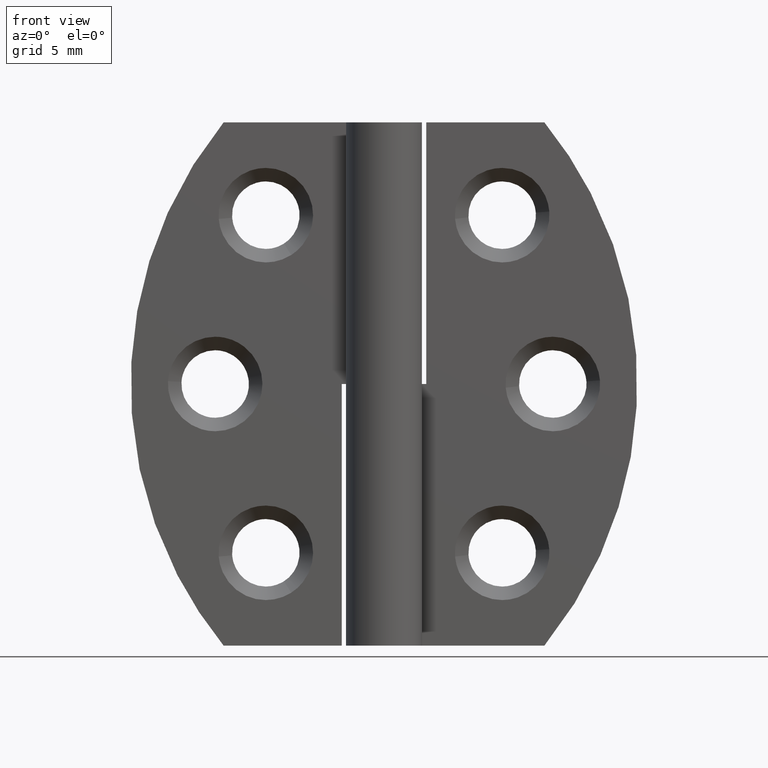
[diagram: clean part render]
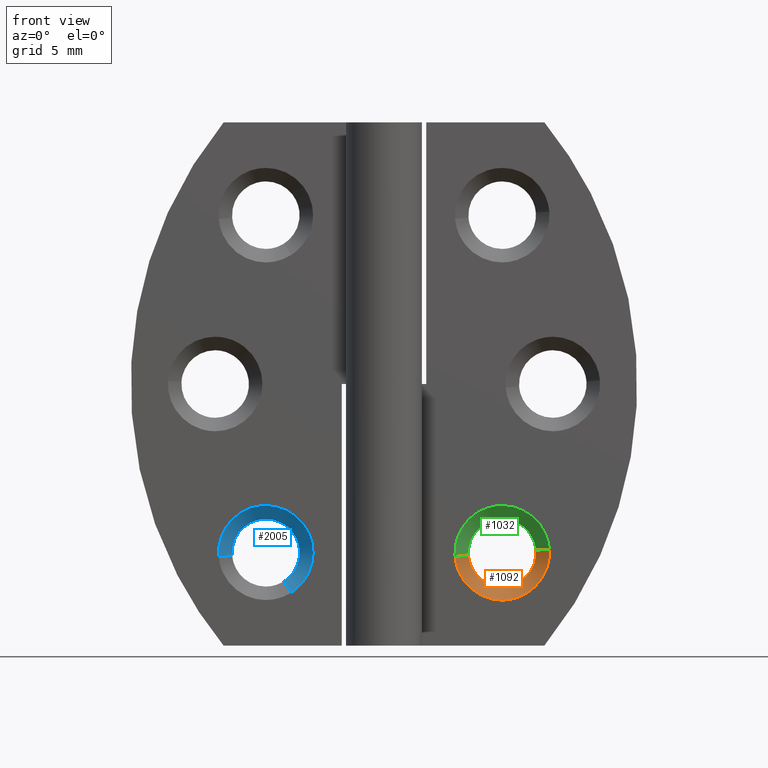
[diagram: same view with three faces highlighted in distinct colors, each labeled with its STEP entity id]
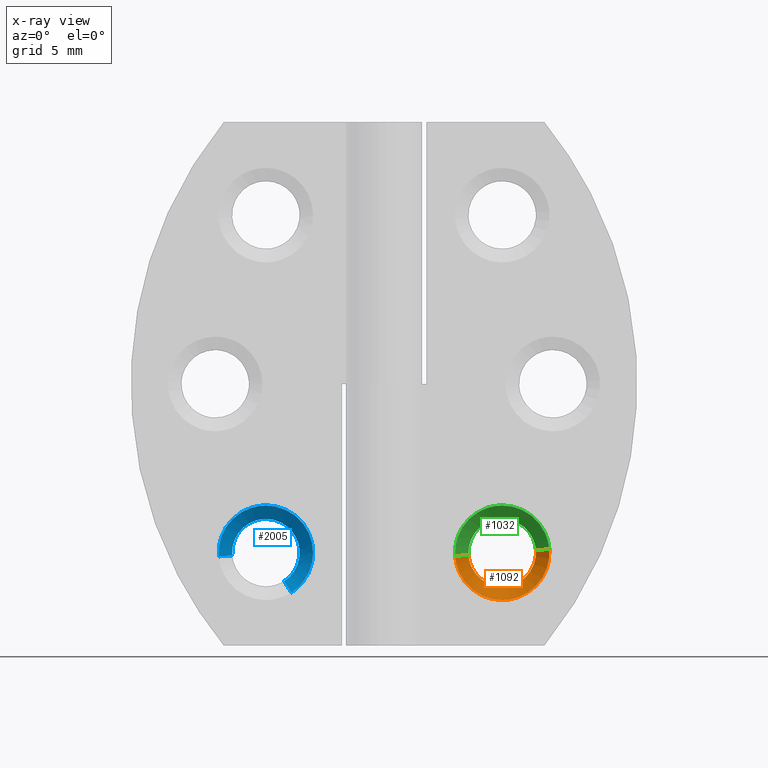
[diagram: x-ray of the same camera — body ghosted, the three highlighted faces saturated]
A machine part, front view with three faces highlighted in distinct colors.
The next image is the same camera in x-ray (body ghosted, the three faces saturated) — at least one of them is partly hidden behind the body in this view.
Their STEP definitions:

[orange] entity #1092 — the highlighted face is a freeform B-spline surface patch.
#783=CARTESIAN_POINT('',(8.986938514657123,2.050000000000000,5.271799783148132));
#784=VERTEX_POINT('',#783);
#785=CARTESIAN_POINT('',(7.000000000000100,2.050000000000000,3.500000000000100));
#786=VERTEX_POINT('',#785);
#787=CARTESIAN_POINT('',(8.986938514657123,2.050000000000000,5.271799783148132));
#788=CARTESIAN_POINT('',(8.783447016682001,2.050000000000001,3.500000000000100));
#789=CARTESIAN_POINT('',(7.000000000000100,2.050000000000000,3.500000000000100));
#797=(BOUNDED_CURVE()B_SPLINE_CURVE(2,(#787,#788,#789),.UNSPECIFIED.,.F.,.U.)B_SPLINE_CURVE_WITH_KNOTS((3,3),(0.269767661109244,0.500000000000000),.UNSPECIFIED.)CURVE()GEOMETRIC_REPRESENTATION_ITEM()RATIONAL_B_SPLINE_CURVE((0.957343923398462,0.730266036749348,1.0))REPRESENTATION_ITEM(''));
#798=EDGE_CURVE('',#784,#786,#797,.T.);
#837=CARTESIAN_POINT('',(5.003730392787224,2.049999999999758,5.377903090464580));
#838=VERTEX_POINT('',#837);
#844=CARTESIAN_POINT('',(7.000000000000100,2.050000000000000,3.500000000000100));
#845=CARTESIAN_POINT('',(5.118587706110260,2.050000000000002,3.500000000000100));
#846=CARTESIAN_POINT('',(5.003730392787224,2.049999999999758,5.377903090464580));
#854=(BOUNDED_CURVE()B_SPLINE_CURVE(2,(#844,#845,#846),.UNSPECIFIED.,.F.,.U.)B_SPLINE_CURVE_WITH_KNOTS((3,3),(0.500000000000000,0.739332976895591),.UNSPECIFIED.)CURVE()GEOMETRIC_REPRESENTATION_ITEM()RATIONAL_B_SPLINE_CURVE((1.0,0.719603976115379,0.976072073078706))REPRESENTATION_ITEM(''));
#855=EDGE_CURVE('',#786,#838,#854,.T.);
#882=CARTESIAN_POINT('',(8.993834667482807,2.049999999958822,5.656918191771584));
#883=VERTEX_POINT('',#882);
#884=CARTESIAN_POINT('',(8.993834667482807,2.049999999958822,5.656918191771584));
#885=CARTESIAN_POINT('',(9.000000000000100,2.050000000000001,5.578580214329453));
#886=CARTESIAN_POINT('',(9.000000000000100,2.050000000000000,5.500000000000100));
#887=CARTESIAN_POINT('',(9.000000000000100,2.050000000000001,5.385526091755434));
#888=CARTESIAN_POINT('',(8.986938514657123,2.050000000000000,5.271799783148132));
#896=(BOUNDED_CURVE()B_SPLINE_CURVE(2,(#884,#885,#886,#887,#888),.UNSPECIFIED.,.F.,.U.)B_SPLINE_CURVE_WITH_KNOTS((3,2,3),(0.236331300579020,0.250000000000000,0.269767661109244),.UNSPECIFIED.)CURVE()GEOMETRIC_REPRESENTATION_ITEM()RATIONAL_B_SPLINE_CURVE((0.969723356059650,0.983986122518383,1.0,0.976840744437200,0.957343923398462))REPRESENTATION_ITEM(''));
#897=EDGE_CURVE('',#883,#784,#896,.T.);
#985=CARTESIAN_POINT('',(9.791368534466120,1.249999999966637,5.719685468294783));
#986=VERTEX_POINT('',#985);
#987=CARTESIAN_POINT('',(8.993834667482807,2.049999999958822,5.656918191771584));
#988=CARTESIAN_POINT('',(9.791368534466120,1.249999999966637,5.719685468294783));
#989=QUASI_UNIFORM_CURVE('',1,(#987,#988),.UNSPECIFIED.,.F.,.U.);
#990=EDGE_CURVE('',#883,#986,#989,.T.);
#1007=CARTESIAN_POINT('',(4.208631465534079,1.249999999966637,5.280314531705416));
#1008=VERTEX_POINT('',#1007);
#1024=CARTESIAN_POINT('',(5.003730392787224,2.049999999999758,5.377903090464580));
#1025=CARTESIAN_POINT('',(4.208631465534079,1.249999999966637,5.280314531705416));
#1026=QUASI_UNIFORM_CURVE('',1,(#1024,#1025),.UNSPECIFIED.,.F.,.U.);
#1027=EDGE_CURVE('',#838,#1008,#1026,.T.);
#1033=CARTESIAN_POINT('',(5.021245478881657,2.070000000000000,5.406380278461323));
#1034=CARTESIAN_POINT('',(5.023658743658704,2.070000000000001,5.375716842121559));
#1035=CARTESIAN_POINT('',(5.181452688749644,2.070000000000001,3.370754669667373));
#1036=CARTESIAN_POINT('',(7.155349009541234,2.070000000000000,3.526103679208509));
#1037=CARTESIAN_POINT('',(9.129245330332823,2.070000000000001,3.681452688749643));
#1038=CARTESIAN_POINT('',(8.972794306482092,2.069999999999999,5.669351428981126));
#1039=CARTESIAN_POINT('',(8.971698749399486,2.070000000000001,5.683271801572992));
#1040=CARTESIAN_POINT('',(4.181274178376575,1.229499999999999,5.366639179494989));
#1041=CARTESIAN_POINT('',(4.184711861863273,1.229500000000000,5.322959269294835));
#1042=CARTESIAN_POINT('',(4.409488539706201,1.229500000000000,2.466900780705425));
#1043=CARTESIAN_POINT('',(7.221293879500488,1.229500000000000,2.688194660205813));
#1044=CARTESIAN_POINT('',(10.033099219294774,1.229500000000000,2.909488539706202));
#1045=CARTESIAN_POINT('',(9.810235525976095,1.229500000000000,5.741240255273325));
#1046=CARTESIAN_POINT('',(9.808674910445035,1.229500000000001,5.761069755725523));
#1054=(BOUNDED_SURFACE()B_SPLINE_SURFACE(2,1,((#1033,#1040),(#1034,#1041),(#1035,#1042),(#1036,#1043),(#1037,#1044),(#1038,#1045),(#1039,#1046)),.UNSPECIFIED.,.F.,.F.,.U.)B_SPLINE_SURFACE_WITH_KNOTS((3,1,2,1,3),(2,2),(0.0,0.104694720922406,4.777852131615662,9.451009542308919,9.498029489755453),(0.0,1.0),.UNSPECIFIED.)GEOMETRIC_REPRESENTATION_ITEM()RATIONAL_B_SPLINE_SURFACE(((1.013123621187496,1.013123621187496),(1.006561810593748,1.006561810593748),(0.707106781186548,0.707106781186548),(1.0,1.0),(0.707106781186548,0.707106781186548),(1.002947006177139,1.002947006177139),(1.005894012354277,1.005894012354277)))REPRESENTATION_ITEM('')SURFACE());
#1055=ORIENTED_EDGE('',*,*,#897,.T.);
#1056=ORIENTED_EDGE('',*,*,#798,.T.);
#1057=ORIENTED_EDGE('',*,*,#855,.T.);
#1058=ORIENTED_EDGE('',*,*,#1027,.T.);
#1059=CARTESIAN_POINT('',(7.000000000000100,1.250000000000000,2.700000000000100));
#1060=VERTEX_POINT('',#1059);
#1061=CARTESIAN_POINT('',(7.000000000000100,1.250000000000000,2.700000000000100));
#1062=CARTESIAN_POINT('',(4.411706623829796,1.250000000000000,2.700000000000100));
#1063=CARTESIAN_POINT('',(4.208631465534080,1.249999999966638,5.280314531705416));
#1071=(BOUNDED_CURVE()B_SPLINE_CURVE(2,(#1061,#1062,#1063),.UNSPECIFIED.,.F.,.U.)B_SPLINE_CURVE_WITH_KNOTS((3,3),(0.500000000000000,0.736331300601558),.UNSPECIFIED.)CURVE()GEOMETRIC_REPRESENTATION_ITEM()RATIONAL_B_SPLINE_CURVE((1.0,0.723120658641761,0.969723356106684))REPRESENTATION_ITEM(''));
#1072=EDGE_CURVE('',#1060,#1008,#1071,.T.);
#1073=ORIENTED_EDGE('',*,*,#1072,.F.);
#1074=CARTESIAN_POINT('',(9.791368534466120,1.249999999966637,5.719685468294783));
#1075=CARTESIAN_POINT('',(9.800000000000100,1.250000000000000,5.610012299876852));
#1076=CARTESIAN_POINT('',(9.800000000000100,1.250000000000000,5.500000000000100));
#1077=CARTESIAN_POINT('',(9.800000000000100,1.250000000000000,2.700000000000100));
#1078=CARTESIAN_POINT('',(7.000000000000100,1.250000000000000,2.700000000000100));
#1086=(BOUNDED_CURVE()B_SPLINE_CURVE(2,(#1074,#1075,#1076,#1077,#1078),.UNSPECIFIED.,.F.,.U.)B_SPLINE_CURVE_WITH_KNOTS((3,2,3),(0.236331300601557,0.250000000000000,0.500000000000000),.UNSPECIFIED.)CURVE()GEOMETRIC_REPRESENTATION_ITEM()RATIONAL_B_SPLINE_CURVE((0.969723356106683,0.983986122544786,1.0,0.707106781186547,1.0))REPRESENTATION_ITEM(''));
#1087=EDGE_CURVE('',#986,#1060,#1086,.T.);
#1088=ORIENTED_EDGE('',*,*,#1087,.F.);
#1089=ORIENTED_EDGE('',*,*,#990,.F.);
#1090=EDGE_LOOP('',(#1055,#1056,#1057,#1058,#1073,#1088,#1089));
#1091=FACE_OUTER_BOUND('',#1090,.T.);
#1092=ADVANCED_FACE('',(#1091),#1054,.F.);

[blue] entity #2005 — the highlighted face is a freeform B-spline surface patch.
#1869=CARTESIAN_POINT('',(-5.935055428976314,2.069999999999999,3.830780703248588));
#1870=CARTESIAN_POINT('',(-4.932829668059368,2.070000000000000,4.470190327319853));
#1871=CARTESIAN_POINT('',(-5.026103679208207,2.070000000000000,5.655349009541234));
#1872=CARTESIAN_POINT('',(-5.181452688749341,2.070000000000001,7.629245330332827));
#1873=CARTESIAN_POINT('',(-7.155349009540934,2.070000000000000,7.473896320791692));
#1874=CARTESIAN_POINT('',(-9.129245330332527,2.070000000000001,7.318547311250558));
#1875=CARTESIAN_POINT('',(-8.973896320791393,2.070000000000000,5.344650990458965));
#1876=CARTESIAN_POINT('',(-5.482991837084780,1.229500000000000,3.122205542178059));
#1877=CARTESIAN_POINT('',(-4.055326302404854,1.229500000000000,4.033041322326040));
#1878=CARTESIAN_POINT('',(-4.188194660205512,1.229500000000000,5.721293879500488));
#1879=CARTESIAN_POINT('',(-4.409488539705900,1.229500000000000,8.533099219294776));
#1880=CARTESIAN_POINT('',(-7.221293879500188,1.229500000000000,8.311805339794388));
#1881=CARTESIAN_POINT('',(-10.033099219294476,1.229500000000000,8.090511460294000));
#1882=CARTESIAN_POINT('',(-9.811805339794088,1.229500000000000,5.278706120499711));
#1890=(BOUNDED_SURFACE()B_SPLINE_SURFACE(2,1,((#1869,#1876),(#1870,#1877),(#1871,#1878),(#1872,#1879),(#1873,#1880),(#1874,#1881),(#1875,#1882)),.UNSPECIFIED.,.F.,.F.,.U.)B_SPLINE_SURFACE_WITH_KNOTS((3,2,2,3),(2,2),(0.0,3.177747039271416,7.850904449964676,12.524061860657939),(0.0,1.0),.UNSPECIFIED.)GEOMETRIC_REPRESENTATION_ITEM()RATIONAL_B_SPLINE_SURFACE(((0.872532871172386,0.872532871172386),(0.800832611206852,0.800832611206852),(1.0,1.0),(0.707106781186548,0.707106781186548),(1.0,1.0),(0.707106781186548,0.707106781186548),(1.0,1.0)))REPRESENTATION_ITEM('')SURFACE());
#1891=CARTESIAN_POINT('',(-5.013980947273408,2.050000000000000,5.736068469321534));
#1892=VERTEX_POINT('',#1891);
#1893=CARTESIAN_POINT('',(-5.924298413075603,2.049999999998132,3.813919902289367));
#1894=VERTEX_POINT('',#1893);
#1895=CARTESIAN_POINT('',(-5.013980947273408,2.050000000000000,5.736068469321534));
#1896=CARTESIAN_POINT('',(-4.999999999999800,2.050000000000000,5.618448239311920));
#1897=CARTESIAN_POINT('',(-4.999999999999800,2.050000000000000,5.500000000000100));
#1898=CARTESIAN_POINT('',(-4.999999999999800,2.050000000000001,4.403612688018173));
#1899=CARTESIAN_POINT('',(-5.924298413075603,2.049999999998132,3.813919902289366));
#1907=(BOUNDED_CURVE()B_SPLINE_CURVE(2,(#1895,#1896,#1897,#1898,#1899),.UNSPECIFIED.,.F.,.U.)B_SPLINE_CURVE_WITH_KNOTS((3,2,3),(0.229562473514297,0.250000000000000,0.407950112621993),.UNSPECIFIED.)CURVE()GEOMETRIC_REPRESENTATION_ITEM()RATIONAL_B_SPLINE_CURVE((0.956026754185245,0.976055948332069,1.0,0.814949932408788,0.863729296951492))REPRESENTATION_ITEM(''));
#1908=EDGE_CURVE('',#1892,#1894,#1907,.T.);
#1909=ORIENTED_EDGE('',*,*,#1908,.T.);
#1910=CARTESIAN_POINT('',(-5.494017778282377,1.249999999995842,3.139487863218267));
#1911=VERTEX_POINT('',#1910);
#1912=CARTESIAN_POINT('',(-5.924298413075603,2.049999999998132,3.813919902289367));
#1913=CARTESIAN_POINT('',(-5.494017778282377,1.249999999995842,3.139487863218267));
#1914=QUASI_UNIFORM_CURVE('',1,(#1912,#1913),.UNSPECIFIED.,.F.,.U.);
#1915=EDGE_CURVE('',#1894,#1911,#1914,.T.);
#1916=ORIENTED_EDGE('',*,*,#1915,.T.);
#1917=CARTESIAN_POINT('',(-6.999999999999800,1.250000000000000,8.300000000000098));
#1918=VERTEX_POINT('',#1917);
#1919=CARTESIAN_POINT('',(-6.999999999999800,1.250000000000000,8.300000000000098));
#1920=CARTESIAN_POINT('',(-4.199999999999799,1.250000000000000,8.300000000000098));
#1921=CARTESIAN_POINT('',(-4.199999999999799,1.250000000000000,5.500000000000100));
#1922=CARTESIAN_POINT('',(-4.199999999999799,1.250000000000000,3.965057763260438));
#1923=CARTESIAN_POINT('',(-5.494017778282377,1.249999999995842,3.139487863218267));
#1931=(BOUNDED_CURVE()B_SPLINE_CURVE(2,(#1919,#1920,#1921,#1922,#1923),.UNSPECIFIED.,.F.,.U.)B_SPLINE_CURVE_WITH_KNOTS((3,2,3),(0.0,0.250000000000000,0.407950112619055),.UNSPECIFIED.)CURVE()GEOMETRIC_REPRESENTATION_ITEM()RATIONAL_B_SPLINE_CURVE((1.0,0.707106781186547,1.0,0.814949932412230,0.863729296949677))REPRESENTATION_ITEM(''));
#1932=EDGE_CURVE('',#1918,#1911,#1931,.T.);
#1933=ORIENTED_EDGE('',*,*,#1932,.F.);
#1934=CARTESIAN_POINT('',(-9.791368534465820,1.249999999966638,5.280314531705416));
#1935=VERTEX_POINT('',#1934);
#1936=CARTESIAN_POINT('',(-9.791368534465820,1.249999999966639,5.280314531705417));
#1937=CARTESIAN_POINT('',(-9.799999999999800,1.250000000000000,5.389987700123347));
#1938=CARTESIAN_POINT('',(-9.799999999999800,1.250000000000000,5.500000000000100));
#1939=CARTESIAN_POINT('',(-9.799999999999800,1.250000000000000,8.300000000000098));
#1940=CARTESIAN_POINT('',(-6.999999999999800,1.250000000000000,8.300000000000098));
#1948=(BOUNDED_CURVE()B_SPLINE_CURVE(2,(#1936,#1937,#1938,#1939,#1940),.UNSPECIFIED.,.F.,.U.)B_SPLINE_CURVE_WITH_KNOTS((3,2,3),(0.736331300601557,0.750000000000000,1.0),.UNSPECIFIED.)CURVE()GEOMETRIC_REPRESENTATION_ITEM()RATIONAL_B_SPLINE_CURVE((0.969723356106683,0.983986122544786,1.0,0.707106781186547,1.0))REPRESENTATION_ITEM(''));
#1949=EDGE_CURVE('',#1935,#1918,#1948,.T.);
#1950=ORIENTED_EDGE('',*,*,#1949,.F.);
#1951=CARTESIAN_POINT('',(-8.993834091655309,2.050000612643963,5.343082300626911));
#1952=VERTEX_POINT('',#1951);
#1953=CARTESIAN_POINT('',(-8.993834091655309,2.050000612643963,5.343082300626911));
#1954=CARTESIAN_POINT('',(-9.791368534465820,1.249999999966638,5.280314531705416));
#1955=QUASI_UNIFORM_CURVE('',1,(#1953,#1954),.UNSPECIFIED.,.F.,.U.);
#1956=EDGE_CURVE('',#1952,#1935,#1955,.T.);
#1957=ORIENTED_EDGE('',*,*,#1956,.F.);
#1958=CARTESIAN_POINT('',(-8.996269596837500,2.050000000000000,5.377902920831751));
#1959=VERTEX_POINT('',#1958);
#1960=CARTESIAN_POINT('',(-8.993834091655309,2.050000612643963,5.343082300626912));
#1961=CARTESIAN_POINT('',(-8.995204098961455,2.050000000000001,5.360482184576594));
#1962=CARTESIAN_POINT('',(-8.996269596837500,2.050000000000000,5.377902920831751));
#1970=(BOUNDED_CURVE()B_SPLINE_CURVE(2,(#1960,#1961,#1962),.UNSPECIFIED.,.F.,.U.)B_SPLINE_CURVE_WITH_KNOTS((3,3),(0.736331376983181,0.739332962224917),.UNSPECIFIED.)CURVE()GEOMETRIC_REPRESENTATION_ITEM()RATIONAL_B_SPLINE_CURVE((0.969723515509361,0.972855557364294,0.976072041636657))REPRESENTATION_ITEM(''));
#1971=EDGE_CURVE('',#1952,#1959,#1970,.T.);
#1972=ORIENTED_EDGE('',*,*,#1971,.T.);
#1973=CARTESIAN_POINT('',(-6.999999999999800,2.050000000000000,7.500000000000100));
#1974=VERTEX_POINT('',#1973);
#1975=CARTESIAN_POINT('',(-8.996269596837500,2.050000000000000,5.377902920831752));
#1976=CARTESIAN_POINT('',(-8.999999999999799,2.050000000000000,5.438894473304011));
#1977=CARTESIAN_POINT('',(-8.999999999999799,2.050000000000000,5.500000000000100));
#1978=CARTESIAN_POINT('',(-8.999999999999799,2.050000000000001,7.500000000000099));
#1979=CARTESIAN_POINT('',(-6.999999999999800,2.050000000000000,7.500000000000100));
#1987=(BOUNDED_CURVE()B_SPLINE_CURVE(2,(#1975,#1976,#1977,#1978,#1979),.UNSPECIFIED.,.F.,.U.)B_SPLINE_CURVE_WITH_KNOTS((3,2,3),(0.739332962224917,0.750000000000000,1.0),.UNSPECIFIED.)CURVE()GEOMETRIC_REPRESENTATION_ITEM()RATIONAL_B_SPLINE_CURVE((0.976072041636658,0.987502787883406,1.0,0.707106781186548,1.0))REPRESENTATION_ITEM(''));
#1988=EDGE_CURVE('',#1959,#1974,#1987,.T.);
#1989=ORIENTED_EDGE('',*,*,#1988,.T.);
#1990=CARTESIAN_POINT('',(-6.999999999999800,2.050000000000000,7.500000000000100));
#1991=CARTESIAN_POINT('',(-5.223650948111325,2.050000000000000,7.500000000000100));
#1992=CARTESIAN_POINT('',(-5.013980947273408,2.050000000000001,5.736068469321534));
#2000=(BOUNDED_CURVE()B_SPLINE_CURVE(2,(#1990,#1991,#1992),.UNSPECIFIED.,.F.,.U.)B_SPLINE_CURVE_WITH_KNOTS((3,3),(0.0,0.229562473514297),.UNSPECIFIED.)CURVE()GEOMETRIC_REPRESENTATION_ITEM()RATIONAL_B_SPLINE_CURVE((1.0,0.731050832854479,0.956026754185245))REPRESENTATION_ITEM(''));
#2001=EDGE_CURVE('',#1974,#1892,#2000,.T.);
#2002=ORIENTED_EDGE('',*,*,#2001,.T.);
#2003=EDGE_LOOP('',(#1909,#1916,#1933,#1950,#1957,#1972,#1989,#2002));
#2004=FACE_OUTER_BOUND('',#2003,.T.);
#2005=ADVANCED_FACE('',(#2004),#1890,.F.);

[green] entity #1032 — the highlighted face is a freeform B-spline surface patch.
#837=CARTESIAN_POINT('',(5.003730392787224,2.049999999999758,5.377903090464580));
#838=VERTEX_POINT('',#837);
#882=CARTESIAN_POINT('',(8.993834667482807,2.049999999958822,5.656918191771584));
#883=VERTEX_POINT('',#882);
#899=CARTESIAN_POINT('',(7.000000000000100,2.050000000000000,7.500000000000100));
#900=VERTEX_POINT('',#899);
#901=CARTESIAN_POINT('',(7.000000000000100,2.050000000000000,7.500000000000100));
#902=CARTESIAN_POINT('',(8.848780982735075,2.050000000000001,7.500000000000100));
#903=CARTESIAN_POINT('',(8.993834667482807,2.049999999958822,5.656918191771584));
#911=(BOUNDED_CURVE()B_SPLINE_CURVE(2,(#901,#902,#903),.UNSPECIFIED.,.F.,.U.)B_SPLINE_CURVE_WITH_KNOTS((3,3),(0.0,0.236331300579020),.UNSPECIFIED.)CURVE()GEOMETRIC_REPRESENTATION_ITEM()RATIONAL_B_SPLINE_CURVE((1.0,0.723120658668165,0.969723356059650))REPRESENTATION_ITEM(''));
#912=EDGE_CURVE('',#900,#883,#911,.T.);
#914=CARTESIAN_POINT('',(5.003730392787224,2.049999999999758,5.377903090464580));
#915=CARTESIAN_POINT('',(5.000000000000100,2.050000000000000,5.438894558407696));
#916=CARTESIAN_POINT('',(5.000000000000100,2.050000000000000,5.500000000000100));
#917=CARTESIAN_POINT('',(5.000000000000100,2.050000000000001,7.500000000000099));
#918=CARTESIAN_POINT('',(7.000000000000100,2.050000000000000,7.500000000000100));
#926=(BOUNDED_CURVE()B_SPLINE_CURVE(2,(#914,#915,#916,#917,#918),.UNSPECIFIED.,.F.,.U.)B_SPLINE_CURVE_WITH_KNOTS((3,2,3),(0.739332976895591,0.750000000000000,1.0),.UNSPECIFIED.)CURVE()GEOMETRIC_REPRESENTATION_ITEM()RATIONAL_B_SPLINE_CURVE((0.976072073078706,0.987502805071169,1.0,0.707106781186548,1.0))REPRESENTATION_ITEM(''));
#927=EDGE_CURVE('',#838,#900,#926,.T.);
#966=CARTESIAN_POINT('',(8.973896320791690,2.070000000000000,5.655349009541234));
#967=CARTESIAN_POINT('',(8.818547311250557,2.070000000000001,7.629245330332826));
#968=CARTESIAN_POINT('',(6.844650990458965,2.070000000000000,7.473896320791690));
#969=CARTESIAN_POINT('',(4.870754669667375,2.070000000000001,7.318547311250558));
#970=CARTESIAN_POINT('',(5.026103679208509,2.070000000000000,5.344650990458965));
#971=CARTESIAN_POINT('',(9.811805339794386,1.229500000000000,5.721293879500488));
#972=CARTESIAN_POINT('',(9.590511460293998,1.229500000000000,8.533099219294774));
#973=CARTESIAN_POINT('',(6.778706120499711,1.229500000000000,8.311805339794386));
#974=CARTESIAN_POINT('',(3.966900780705426,1.229500000000000,8.090511460293998));
#975=CARTESIAN_POINT('',(4.188194660205813,1.229500000000000,5.278706120499711));
#983=(BOUNDED_SURFACE()B_SPLINE_SURFACE(2,1,((#966,#971),(#967,#972),(#968,#973),(#969,#974),(#970,#975)),.UNSPECIFIED.,.F.,.F.,.U.)B_SPLINE_SURFACE_WITH_KNOTS((3,2,3),(2,2),(0.0,4.673157410693259,9.346314821386518),(0.0,1.0),.UNSPECIFIED.)GEOMETRIC_REPRESENTATION_ITEM()RATIONAL_B_SPLINE_SURFACE(((1.0,1.0),(0.707106781186548,0.707106781186548),(1.0,1.0),(0.707106781186548,0.707106781186548),(1.0,1.0)))REPRESENTATION_ITEM('')SURFACE());
#984=ORIENTED_EDGE('',*,*,#912,.T.);
#985=CARTESIAN_POINT('',(9.791368534466120,1.249999999966637,5.719685468294783));
#986=VERTEX_POINT('',#985);
#987=CARTESIAN_POINT('',(8.993834667482807,2.049999999958822,5.656918191771584));
#988=CARTESIAN_POINT('',(9.791368534466120,1.249999999966637,5.719685468294783));
#989=QUASI_UNIFORM_CURVE('',1,(#987,#988),.UNSPECIFIED.,.F.,.U.);
#990=EDGE_CURVE('',#883,#986,#989,.T.);
#991=ORIENTED_EDGE('',*,*,#990,.T.);
#992=CARTESIAN_POINT('',(7.000000000000100,1.250000000000000,8.300000000000098));
#993=VERTEX_POINT('',#992);
#994=CARTESIAN_POINT('',(7.000000000000100,1.250000000000000,8.300000000000098));
#995=CARTESIAN_POINT('',(9.588293376170396,1.250000000000000,8.300000000000098));
#996=CARTESIAN_POINT('',(9.791368534466120,1.249999999966637,5.719685468294783));
#1004=(BOUNDED_CURVE()B_SPLINE_CURVE(2,(#994,#995,#996),.UNSPECIFIED.,.F.,.U.)B_SPLINE_CURVE_WITH_KNOTS((3,3),(0.0,0.236331300601557),.UNSPECIFIED.)CURVE()GEOMETRIC_REPRESENTATION_ITEM()RATIONAL_B_SPLINE_CURVE((1.0,0.723120658641761,0.969723356106683))REPRESENTATION_ITEM(''));
#1005=EDGE_CURVE('',#993,#986,#1004,.T.);
#1006=ORIENTED_EDGE('',*,*,#1005,.F.);
#1007=CARTESIAN_POINT('',(4.208631465534079,1.249999999966637,5.280314531705416));
#1008=VERTEX_POINT('',#1007);
#1009=CARTESIAN_POINT('',(4.208631465534079,1.249999999966638,5.280314531705417));
#1010=CARTESIAN_POINT('',(4.200000000000100,1.250000000000000,5.389987700123347));
#1011=CARTESIAN_POINT('',(4.200000000000100,1.250000000000000,5.500000000000100));
#1012=CARTESIAN_POINT('',(4.200000000000101,1.250000000000000,8.300000000000098));
#1013=CARTESIAN_POINT('',(7.000000000000100,1.250000000000000,8.300000000000098));
#1021=(BOUNDED_CURVE()B_SPLINE_CURVE(2,(#1009,#1010,#1011,#1012,#1013),.UNSPECIFIED.,.F.,.U.)B_SPLINE_CURVE_WITH_KNOTS((3,2,3),(0.736331300601557,0.750000000000000,1.0),.UNSPECIFIED.)CURVE()GEOMETRIC_REPRESENTATION_ITEM()RATIONAL_B_SPLINE_CURVE((0.969723356106683,0.983986122544786,1.0,0.707106781186547,1.0))REPRESENTATION_ITEM(''));
#1022=EDGE_CURVE('',#1008,#993,#1021,.T.);
#1023=ORIENTED_EDGE('',*,*,#1022,.F.);
#1024=CARTESIAN_POINT('',(5.003730392787224,2.049999999999758,5.377903090464580));
#1025=CARTESIAN_POINT('',(4.208631465534079,1.249999999966637,5.280314531705416));
#1026=QUASI_UNIFORM_CURVE('',1,(#1024,#1025),.UNSPECIFIED.,.F.,.U.);
#1027=EDGE_CURVE('',#838,#1008,#1026,.T.);
#1028=ORIENTED_EDGE('',*,*,#1027,.F.);
#1029=ORIENTED_EDGE('',*,*,#927,.T.);
#1030=EDGE_LOOP('',(#984,#991,#1006,#1023,#1028,#1029));
#1031=FACE_OUTER_BOUND('',#1030,.T.);
#1032=ADVANCED_FACE('',(#1031),#983,.F.);